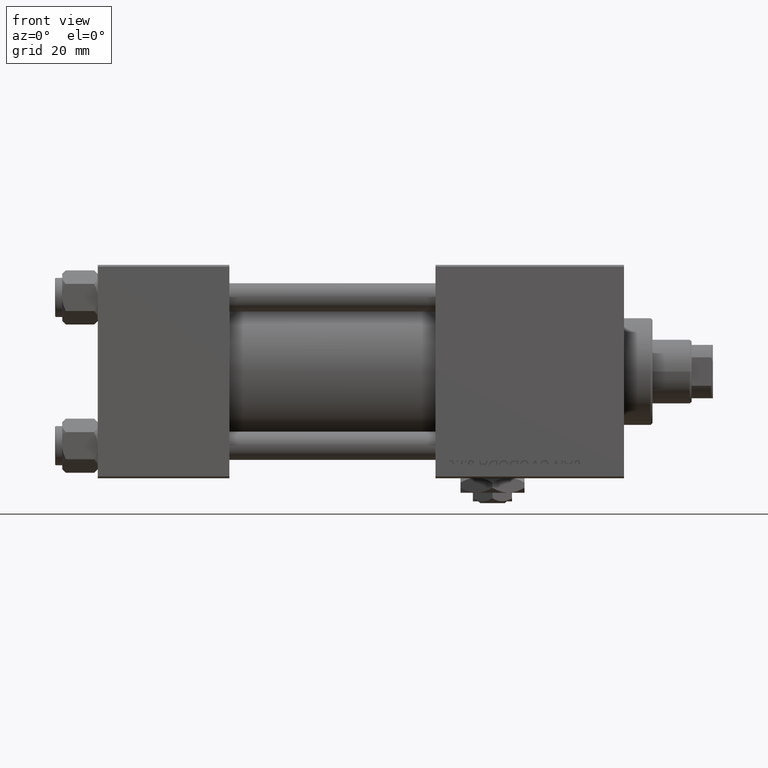
[diagram: clean part render]
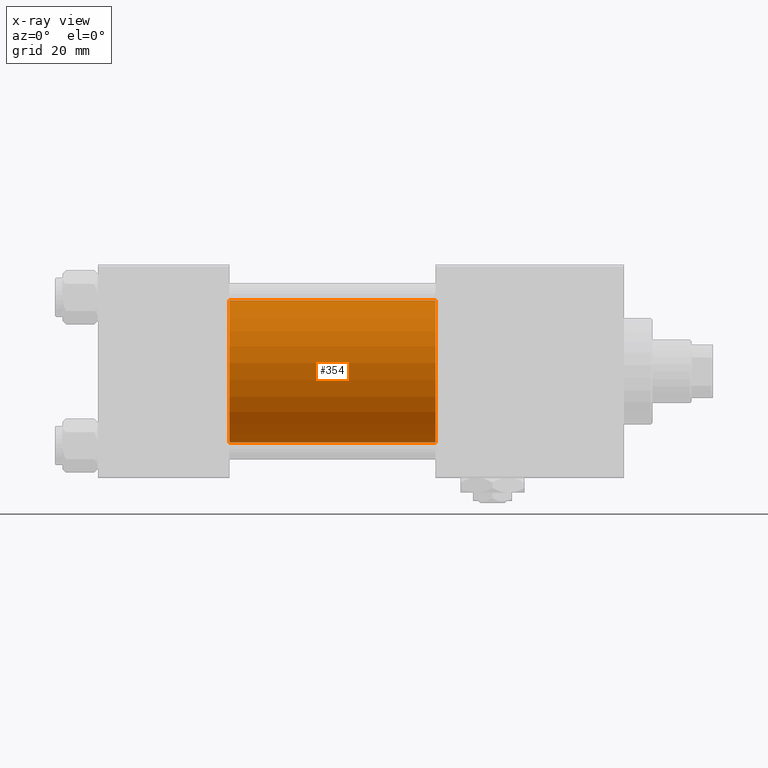
[diagram: x-ray — body ghosted, one internal face saturated and labeled with its STEP entity id]
A machine part, front view, then the same camera in x-ray: the body is ghosted and one INTERNAL B-rep face — a face not visible from any outside direction — is saturated and labeled: STEP entity #354.
In plain terms, the highlighted cylindrical surface (partial cylindrical patch) has radius 20 mm, axis along (-1, -0, -0).
Its self-contained STEP definition (entity closure, byte-faithful):
#354 = ADVANCED_FACE ( 'NONE', ( #11574 ), #47289, .F. ) ;
#510 = LINE ( 'NONE', #8382, #46080 ) ;
#1948 = ORIENTED_EDGE ( 'NONE', *, *, #44812, .F. ) ;
#4413 = DIRECTION ( 'NONE',  ( 0.000000000000000000, 0.000000000000000000, -1.000000000000000000 ) ) ;
#4488 = DIRECTION ( 'NONE',  ( 0.000000000000000000, 0.000000000000000000, -1.000000000000000000 ) ) ;
#6951 = CARTESIAN_POINT ( 'NONE',  ( 95.00000000000000000, -2.602085213965210642E-15, 20.00000000000000000 ) ) ;
#7647 = DIRECTION ( 'NONE',  ( -1.000000000000000000, -0.000000000000000000, -0.000000000000000000 ) ) ;
#8382 = CARTESIAN_POINT ( 'NONE',  ( 95.00000000000000000, -1.527916156705046464E-16, -20.00000000000000000 ) ) ;
#9093 = VECTOR ( 'NONE', #47371, 1000.000000000000000 ) ;
#10991 = CIRCLE ( 'NONE', #33638, 20.00000000000000000 ) ;
#11300 = VERTEX_POINT ( 'NONE', #12096 ) ;
#11574 = FACE_OUTER_BOUND ( 'NONE', #19819, .T. ) ;
#12096 = CARTESIAN_POINT ( 'NONE',  ( 95.00000000000000000, -2.602085213965210642E-15, 20.00000000000000000 ) ) ;
#16481 = EDGE_CURVE ( 'NONE', #30927, #37327, #17134, .T. ) ;
#17134 = CIRCLE ( 'NONE', #33047, 20.00000000000000000 ) ;
#17647 = ORIENTED_EDGE ( 'NONE', *, *, #32960, .T. ) ;
#19819 = EDGE_LOOP ( 'NONE', ( #42585, #17647, #28334, #1948 ) ) ;
#20158 = DIRECTION ( 'NONE',  ( 1.000000000000000000, 0.000000000000000000, 0.000000000000000000 ) ) ;
#22705 = LINE ( 'NONE', #6951, #9093 ) ;
#23387 = CARTESIAN_POINT ( 'NONE',  ( 95.00000000000000000, -2.602085213965210642E-15, 0.000000000000000000 ) ) ;
#24098 = CARTESIAN_POINT ( 'NONE',  ( 95.00000000000000000, -2.602085213965210642E-15, 0.000000000000000000 ) ) ;
#24391 = AXIS2_PLACEMENT_3D ( 'NONE', #23387, #7647, #36755 ) ;
#24396 = DIRECTION ( 'NONE',  ( -1.000000000000000000, -0.000000000000000000, -0.000000000000000000 ) ) ;
#28334 = ORIENTED_EDGE ( 'NONE', *, *, #16481, .F. ) ;
#28641 = DIRECTION ( 'NONE',  ( 1.000000000000000000, 0.000000000000000000, 0.000000000000000000 ) ) ;
#28903 = CARTESIAN_POINT ( 'NONE',  ( 37.00000000000000000, -2.602085213965210642E-15, 20.00000000000000000 ) ) ;
#30815 = VERTEX_POINT ( 'NONE', #32047 ) ;
#30927 = VERTEX_POINT ( 'NONE', #28903 ) ;
#32047 = CARTESIAN_POINT ( 'NONE',  ( 95.00000000000000000, -1.527916156705046464E-16, -20.00000000000000000 ) ) ;
#32960 = EDGE_CURVE ( 'NONE', #30815, #37327, #510, .T. ) ;
#33047 = AXIS2_PLACEMENT_3D ( 'NONE', #36757, #28641, #4488 ) ;
#33638 = AXIS2_PLACEMENT_3D ( 'NONE', #24098, #20158, #4413 ) ;
#36755 = DIRECTION ( 'NONE',  ( 0.000000000000000000, 0.000000000000000000, 1.000000000000000000 ) ) ;
#36757 = CARTESIAN_POINT ( 'NONE',  ( 37.00000000000000000, -2.602085213965210642E-15, 0.000000000000000000 ) ) ;
#37327 = VERTEX_POINT ( 'NONE', #51548 ) ;
#40089 = EDGE_CURVE ( 'NONE', #11300, #30815, #10991, .T. ) ;
#42585 = ORIENTED_EDGE ( 'NONE', *, *, #40089, .T. ) ;
#44812 = EDGE_CURVE ( 'NONE', #11300, #30927, #22705, .T. ) ;
#46080 = VECTOR ( 'NONE', #24396, 1000.000000000000000 ) ;
#47289 = CYLINDRICAL_SURFACE ( 'NONE', #24391, 20.00000000000000000 ) ;
#47371 = DIRECTION ( 'NONE',  ( -1.000000000000000000, -0.000000000000000000, -0.000000000000000000 ) ) ;
#51548 = CARTESIAN_POINT ( 'NONE',  ( 37.00000000000000000, -1.527916156705046464E-16, -20.00000000000000000 ) ) ;